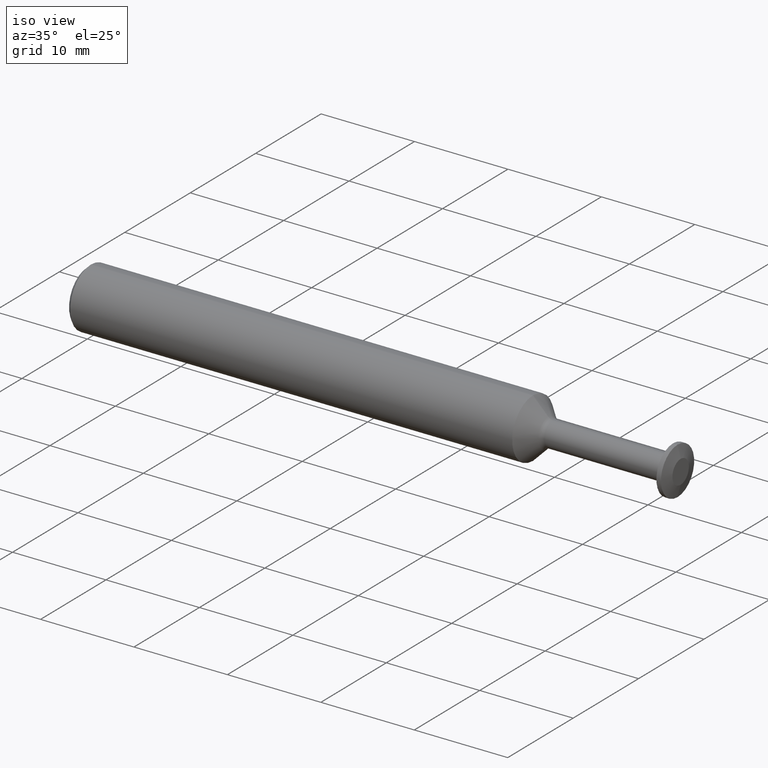
[diagram: clean part render]
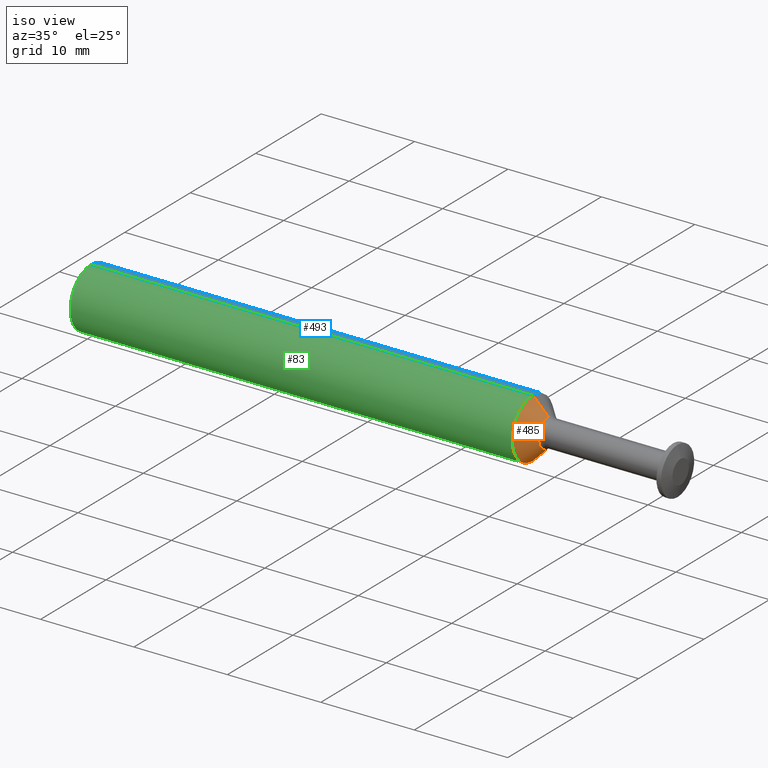
[diagram: same view with three faces highlighted in distinct colors, each labeled with its STEP entity id]
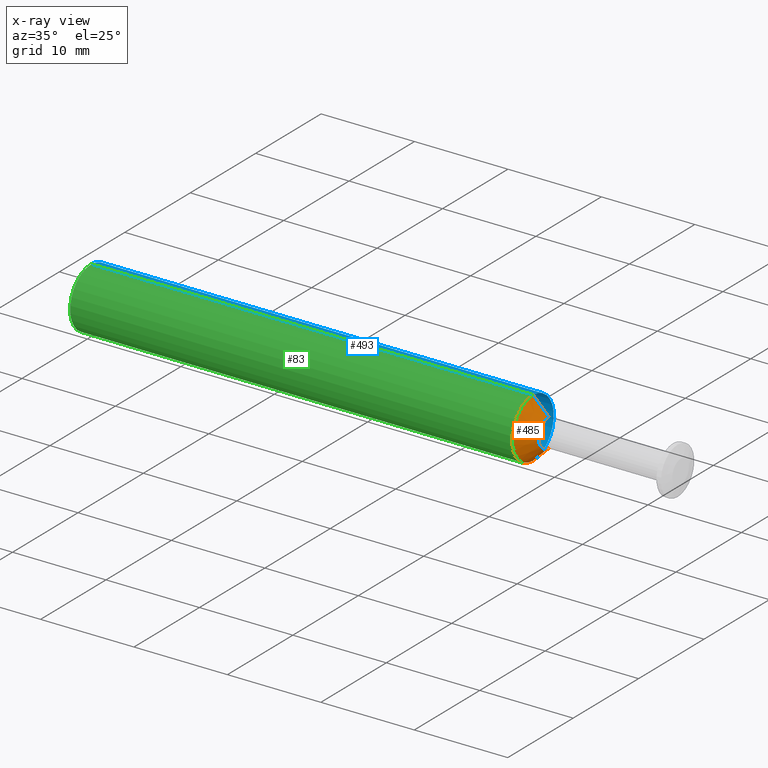
[diagram: x-ray of the same camera — body ghosted, the three highlighted faces saturated]
A machine part, iso view with three faces highlighted in distinct colors.
The next image is the same camera in x-ray (body ghosted, the three faces saturated) — at least one of them is partly hidden behind the body in this view.
Their STEP definitions:

[orange] entity #485 — the highlighted conical surface has half-angle 45 deg.
#5 = CARTESIAN_POINT ( 'NONE',  ( 1.942677669529663476, 0.000000000000000000, 0.000000000000000000 ) ) ;
#6 = CARTESIAN_POINT ( 'NONE',  ( 1.877650000000000485, 0.000000000000000000, 0.1248500000000000026 ) ) ;
#14 = DIRECTION ( 'NONE',  ( 0.000000000000000000, 0.000000000000000000, 1.000000000000000000 ) ) ;
#62 = EDGE_CURVE ( 'NONE', #69, #523, #167, .T. ) ;
#64 = AXIS2_PLACEMENT_3D ( 'NONE', #227, #74, #14 ) ;
#69 = VERTEX_POINT ( 'NONE', #208 ) ;
#74 = DIRECTION ( 'NONE',  ( -1.000000000000000000, -0.000000000000000000, -0.000000000000000000 ) ) ;
#108 = ORIENTED_EDGE ( 'NONE', *, *, #324, .F. ) ;
#130 = VECTOR ( 'NONE', #175, 39.37007874015748143 ) ;
#167 = LINE ( 'NONE', #447, #369 ) ;
#175 = DIRECTION ( 'NONE',  ( -0.7071067811865439090, 0.000000000000000000, 0.7071067811865511255 ) ) ;
#182 = VERTEX_POINT ( 'NONE', #6 ) ;
#199 = DIRECTION ( 'NONE',  ( -1.000000000000000000, -0.000000000000000000, -0.000000000000000000 ) ) ;
#202 = DIRECTION ( 'NONE',  ( -0.7071067811865439090, 8.659560562354977232E-17, -0.7071067811865511255 ) ) ;
#208 = CARTESIAN_POINT ( 'NONE',  ( 1.942677669529663476, 7.326122552803247916E-18, -0.05982233047033626294 ) ) ;
#209 = LINE ( 'NONE', #370, #130 ) ;
#227 = CARTESIAN_POINT ( 'NONE',  ( 1.877650000000000485, 0.000000000000000000, 0.000000000000000000 ) ) ;
#236 = FACE_OUTER_BOUND ( 'NONE', #307, .T. ) ;
#270 = ORIENTED_EDGE ( 'NONE', *, *, #529, .T. ) ;
#274 = CONICAL_SURFACE ( 'NONE', #354, 0.05982233047033617968, 0.7853981633974533860 ) ;
#291 = CIRCLE ( 'NONE', #64, 0.1248500000000000026 ) ;
#302 = ORIENTED_EDGE ( 'NONE', *, *, #426, .T. ) ;
#306 = AXIS2_PLACEMENT_3D ( 'NONE', #489, #199, #403 ) ;
#307 = EDGE_LOOP ( 'NONE', ( #476, #302, #270, #108 ) ) ;
#308 = VERTEX_POINT ( 'NONE', #309 ) ;
#309 = CARTESIAN_POINT ( 'NONE',  ( 1.942677669529663476, 0.000000000000000000, 0.05982233047033626294 ) ) ;
#311 = DIRECTION ( 'NONE',  ( -1.000000000000000000, -0.000000000000000000, -0.000000000000000000 ) ) ;
#324 = EDGE_CURVE ( 'NONE', #523, #182, #291, .T. ) ;
#354 = AXIS2_PLACEMENT_3D ( 'NONE', #5, #311, #448 ) ;
#357 = CARTESIAN_POINT ( 'NONE',  ( 1.877650000000000485, 1.528971528735470422E-17, -0.1248500000000000026 ) ) ;
#369 = VECTOR ( 'NONE', #202, 39.37007874015748143 ) ;
#370 = CARTESIAN_POINT ( 'NONE',  ( 1.942677669529663476, 0.000000000000000000, 0.05982233047033617968 ) ) ;
#388 = CIRCLE ( 'NONE', #306, 0.05982233047033617968 ) ;
#403 = DIRECTION ( 'NONE',  ( 0.000000000000000000, 0.000000000000000000, 1.000000000000000000 ) ) ;
#426 = EDGE_CURVE ( 'NONE', #69, #308, #388, .T. ) ;
#447 = CARTESIAN_POINT ( 'NONE',  ( 1.942677669529663476, 7.326122552803237131E-18, -0.05982233047033617968 ) ) ;
#448 = DIRECTION ( 'NONE',  ( 0.000000000000000000, 0.000000000000000000, 1.000000000000000000 ) ) ;
#476 = ORIENTED_EDGE ( 'NONE', *, *, #62, .F. ) ;
#485 = ADVANCED_FACE ( 'NONE', ( #236 ), #274, .T. ) ;
#489 = CARTESIAN_POINT ( 'NONE',  ( 1.942677669529663476, 0.000000000000000000, 0.000000000000000000 ) ) ;
#523 = VERTEX_POINT ( 'NONE', #357 ) ;
#529 = EDGE_CURVE ( 'NONE', #308, #182, #209, .T. ) ;

[blue] entity #493 — the highlighted cylindrical surface (edge-blend (fillet) strip) has radius 3.1712 mm, axis along (-1, -0, -0).
#6 = CARTESIAN_POINT ( 'NONE',  ( 1.877650000000000485, 0.000000000000000000, 0.1248500000000000026 ) ) ;
#7 = EDGE_CURVE ( 'NONE', #182, #157, #390, .T. ) ;
#19 = DIRECTION ( 'NONE',  ( 0.000000000000000000, 0.000000000000000000, -1.000000000000000000 ) ) ;
#25 = AXIS2_PLACEMENT_3D ( 'NONE', #359, #528, #443 ) ;
#28 = CARTESIAN_POINT ( 'NONE',  ( 0.000000000000000000, 0.000000000000000000, 0.1248500000000000026 ) ) ;
#42 = CARTESIAN_POINT ( 'NONE',  ( 0.01500000000000024925, 1.528971528735470422E-17, -0.1248500000000000026 ) ) ;
#82 = LINE ( 'NONE', #364, #522 ) ;
#86 = CYLINDRICAL_SURFACE ( 'NONE', #283, 0.1248500000000000026 ) ;
#99 = ORIENTED_EDGE ( 'NONE', *, *, #411, .T. ) ;
#114 = DIRECTION ( 'NONE',  ( 0.000000000000000000, 0.000000000000000000, 1.000000000000000000 ) ) ;
#133 = EDGE_CURVE ( 'NONE', #523, #465, #82, .T. ) ;
#153 = FACE_OUTER_BOUND ( 'NONE', #193, .T. ) ;
#157 = VERTEX_POINT ( 'NONE', #407 ) ;
#177 = ORIENTED_EDGE ( 'NONE', *, *, #133, .T. ) ;
#181 = CIRCLE ( 'NONE', #431, 0.1248500000000000026 ) ;
#182 = VERTEX_POINT ( 'NONE', #6 ) ;
#190 = DIRECTION ( 'NONE',  ( -1.000000000000000000, -0.000000000000000000, -0.000000000000000000 ) ) ;
#193 = EDGE_LOOP ( 'NONE', ( #99, #177, #463, #350 ) ) ;
#248 = EDGE_CURVE ( 'NONE', #465, #157, #181, .T. ) ;
#250 = DIRECTION ( 'NONE',  ( -1.000000000000000000, -0.000000000000000000, -0.000000000000000000 ) ) ;
#253 = VECTOR ( 'NONE', #190, 39.37007874015748143 ) ;
#258 = DIRECTION ( 'NONE',  ( 1.000000000000000000, 0.000000000000000000, 0.000000000000000000 ) ) ;
#278 = CARTESIAN_POINT ( 'NONE',  ( 0.000000000000000000, 0.000000000000000000, 0.000000000000000000 ) ) ;
#283 = AXIS2_PLACEMENT_3D ( 'NONE', #278, #477, #114 ) ;
#350 = ORIENTED_EDGE ( 'NONE', *, *, #7, .F. ) ;
#357 = CARTESIAN_POINT ( 'NONE',  ( 1.877650000000000485, 1.528971528735470422E-17, -0.1248500000000000026 ) ) ;
#359 = CARTESIAN_POINT ( 'NONE',  ( 1.877650000000000485, 0.000000000000000000, 0.000000000000000000 ) ) ;
#364 = CARTESIAN_POINT ( 'NONE',  ( 0.000000000000000000, 1.528971528735470422E-17, -0.1248500000000000026 ) ) ;
#390 = LINE ( 'NONE', #28, #253 ) ;
#407 = CARTESIAN_POINT ( 'NONE',  ( 0.01500000000000024925, 0.000000000000000000, 0.1248500000000000026 ) ) ;
#411 = EDGE_CURVE ( 'NONE', #182, #523, #497, .T. ) ;
#431 = AXIS2_PLACEMENT_3D ( 'NONE', #464, #258, #19 ) ;
#443 = DIRECTION ( 'NONE',  ( 0.000000000000000000, 0.000000000000000000, 1.000000000000000000 ) ) ;
#463 = ORIENTED_EDGE ( 'NONE', *, *, #248, .T. ) ;
#464 = CARTESIAN_POINT ( 'NONE',  ( 0.01500000000000024925, 0.000000000000000000, 0.000000000000000000 ) ) ;
#465 = VERTEX_POINT ( 'NONE', #42 ) ;
#477 = DIRECTION ( 'NONE',  ( -1.000000000000000000, -0.000000000000000000, -0.000000000000000000 ) ) ;
#493 = ADVANCED_FACE ( 'NONE', ( #153 ), #86, .T. ) ;
#497 = CIRCLE ( 'NONE', #25, 0.1248500000000000026 ) ;
#522 = VECTOR ( 'NONE', #250, 39.37007874015748143 ) ;
#523 = VERTEX_POINT ( 'NONE', #357 ) ;
#528 = DIRECTION ( 'NONE',  ( -1.000000000000000000, -0.000000000000000000, -0.000000000000000000 ) ) ;

[green] entity #83 — the highlighted cylindrical surface (edge-blend (fillet) strip) has radius 3.1712 mm, axis along (-1, -0, -0).
#6 = CARTESIAN_POINT ( 'NONE',  ( 1.877650000000000485, 0.000000000000000000, 0.1248500000000000026 ) ) ;
#7 = EDGE_CURVE ( 'NONE', #182, #157, #390, .T. ) ;
#14 = DIRECTION ( 'NONE',  ( 0.000000000000000000, 0.000000000000000000, 1.000000000000000000 ) ) ;
#15 = ORIENTED_EDGE ( 'NONE', *, *, #324, .T. ) ;
#26 = ORIENTED_EDGE ( 'NONE', *, *, #7, .T. ) ;
#28 = CARTESIAN_POINT ( 'NONE',  ( 0.000000000000000000, 0.000000000000000000, 0.1248500000000000026 ) ) ;
#42 = CARTESIAN_POINT ( 'NONE',  ( 0.01500000000000024925, 1.528971528735470422E-17, -0.1248500000000000026 ) ) ;
#64 = AXIS2_PLACEMENT_3D ( 'NONE', #227, #74, #14 ) ;
#74 = DIRECTION ( 'NONE',  ( -1.000000000000000000, -0.000000000000000000, -0.000000000000000000 ) ) ;
#82 = LINE ( 'NONE', #364, #522 ) ;
#83 = ADVANCED_FACE ( 'NONE', ( #249 ), #85, .T. ) ;
#85 = CYLINDRICAL_SURFACE ( 'NONE', #271, 0.1248500000000000026 ) ;
#133 = EDGE_CURVE ( 'NONE', #523, #465, #82, .T. ) ;
#157 = VERTEX_POINT ( 'NONE', #407 ) ;
#174 = DIRECTION ( 'NONE',  ( -1.000000000000000000, -0.000000000000000000, -0.000000000000000000 ) ) ;
#179 = CARTESIAN_POINT ( 'NONE',  ( 0.01500000000000024925, 0.000000000000000000, 0.000000000000000000 ) ) ;
#182 = VERTEX_POINT ( 'NONE', #6 ) ;
#190 = DIRECTION ( 'NONE',  ( -1.000000000000000000, -0.000000000000000000, -0.000000000000000000 ) ) ;
#227 = CARTESIAN_POINT ( 'NONE',  ( 1.877650000000000485, 0.000000000000000000, 0.000000000000000000 ) ) ;
#235 = ORIENTED_EDGE ( 'NONE', *, *, #281, .T. ) ;
#243 = DIRECTION ( 'NONE',  ( 0.000000000000000000, 0.000000000000000000, 1.000000000000000000 ) ) ;
#249 = FACE_OUTER_BOUND ( 'NONE', #340, .T. ) ;
#250 = DIRECTION ( 'NONE',  ( -1.000000000000000000, -0.000000000000000000, -0.000000000000000000 ) ) ;
#253 = VECTOR ( 'NONE', #190, 39.37007874015748143 ) ;
#271 = AXIS2_PLACEMENT_3D ( 'NONE', #452, #174, #243 ) ;
#281 = EDGE_CURVE ( 'NONE', #157, #465, #405, .T. ) ;
#291 = CIRCLE ( 'NONE', #64, 0.1248500000000000026 ) ;
#319 = ORIENTED_EDGE ( 'NONE', *, *, #133, .F. ) ;
#324 = EDGE_CURVE ( 'NONE', #523, #182, #291, .T. ) ;
#340 = EDGE_LOOP ( 'NONE', ( #319, #15, #26, #235 ) ) ;
#347 = DIRECTION ( 'NONE',  ( 0.000000000000000000, 0.000000000000000000, -1.000000000000000000 ) ) ;
#357 = CARTESIAN_POINT ( 'NONE',  ( 1.877650000000000485, 1.528971528735470422E-17, -0.1248500000000000026 ) ) ;
#362 = AXIS2_PLACEMENT_3D ( 'NONE', #179, #374, #347 ) ;
#364 = CARTESIAN_POINT ( 'NONE',  ( 0.000000000000000000, 1.528971528735470422E-17, -0.1248500000000000026 ) ) ;
#374 = DIRECTION ( 'NONE',  ( 1.000000000000000000, 0.000000000000000000, 0.000000000000000000 ) ) ;
#390 = LINE ( 'NONE', #28, #253 ) ;
#405 = CIRCLE ( 'NONE', #362, 0.1248500000000000026 ) ;
#407 = CARTESIAN_POINT ( 'NONE',  ( 0.01500000000000024925, 0.000000000000000000, 0.1248500000000000026 ) ) ;
#452 = CARTESIAN_POINT ( 'NONE',  ( 0.000000000000000000, 0.000000000000000000, 0.000000000000000000 ) ) ;
#465 = VERTEX_POINT ( 'NONE', #42 ) ;
#522 = VECTOR ( 'NONE', #250, 39.37007874015748143 ) ;
#523 = VERTEX_POINT ( 'NONE', #357 ) ;